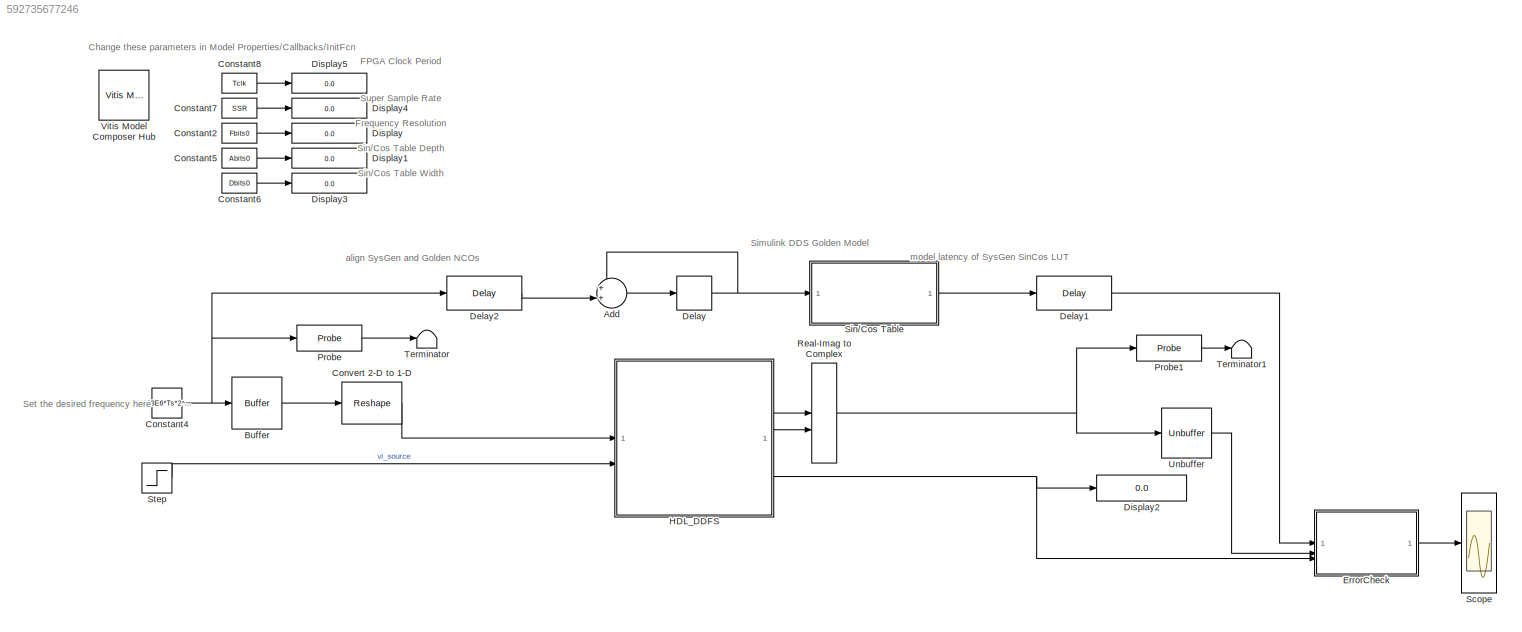
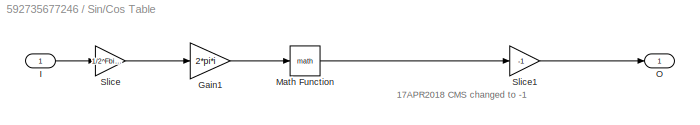
MODEL slx_592735677246
KIND model
CONFIG AbsTol = auto
CONFIG EnableMultiTasking = off
CONFIG FixedStep = auto
CONFIG InitFcn = Fbits0=48; %frequency resolution\nAbits0=16; %Sin/COS table depth is 2^Abits\nDbits0=18; %Sin/COS table width is 1..-Dbits\n\nclk = 550e+6; % Hz\n%clk = 275e+6; % Hz\n\n% change sample rate to change SSR\nsample_rate = 1/6600e+6; % 6.6GHz\nsample_rate = 1/4400e+6; % \n%sample_rate = 1/3300e+6; % 3.3GHz\n\n\nSSR = ceil((1/sample_rate)*(1/clk));\nTclk = 1/clk;\nTs = sample_rate;\n\n%SSR=128;\n%Ts=2.5E-10; %4Gsps samp...<+40ch>
CONFIG MaxStep = auto
CONFIG MinStep = auto
CONFIG RelTol = 1e-3
CONFIG SampleTimeConstraint = Unconstrained
CONFIG SolverName = VariableStepAuto
CONFIG StartTime = 0.0
CONFIG StopTime = 80E-6
BLOCK [Sum] Add
  Inputs = ++|
  OutDataTypeStr = fixdt(1,Fbits0,0)
BLOCK [Buffer] Buffer
  N = SSR
  OutputFrames = off
BLOCK [Constant] Constant2
  OutDataTypeStr = int32
  SampleTime = -1
  Value = Fbits0
BLOCK [Constant] Constant4
  OutDataTypeStr = fixdt(1,Fbits0,0)
  SampleTime = -1
  Value = 123E6*Ts*2^Fbits0
BLOCK [Constant] Constant5
  OutDataTypeStr = int32
  SampleTime = -1
  Value = Abits0
BLOCK [Constant] Constant6
  OutDataTypeStr = int32
  SampleTime = -1
  Value = Dbits0
BLOCK [Constant] Constant7
  OutDataTypeStr = int32
  SampleTime = -1
  Value = SSR
BLOCK [Constant] Constant8
  OutDataTypeStr = double
  SampleTime = -1
  Value = Tclk
BLOCK [Reshape] Convert 2-D to 1-D
BLOCK [Delay] Delay
  DelayLength = 1
  InputPortMap = u0
BLOCK [Delay] Delay1
  DelayLength = 5*SSR
  InputPortMap = u0
BLOCK [Delay] Delay2
  DelayLength = 2*SSR*SSR
  InputPortMap = u0
BLOCK [Display] Display
  Decimation = 1
BLOCK [Display] Display1
  Decimation = 1
BLOCK [Display] Display2
  Decimation = 1
BLOCK [Display] Display3
  Decimation = 1
BLOCK [Display] Display4
  Decimation = 1
BLOCK [Display] Display5
  Decimation = 1
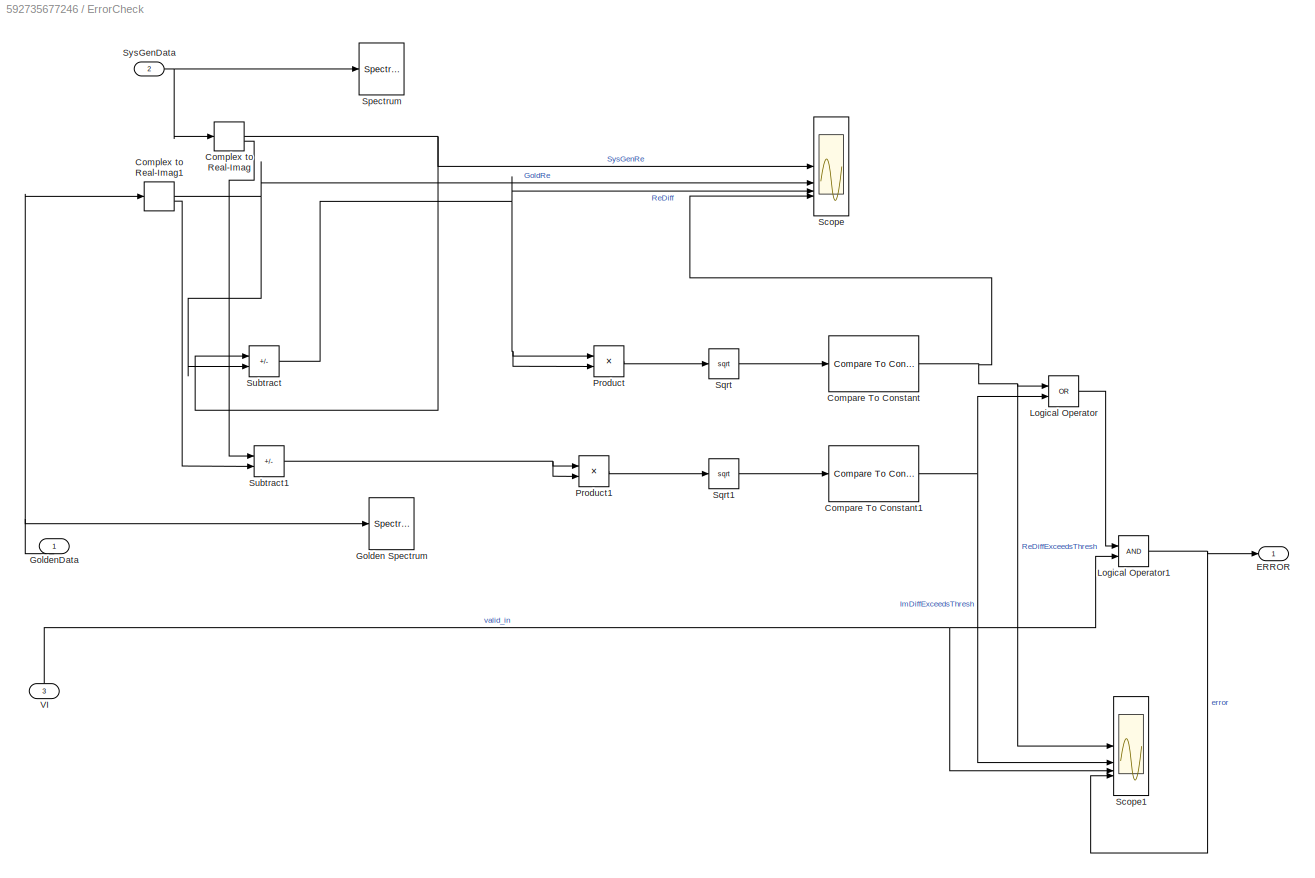
BLOCK [SubSystem] ErrorCheck
BLOCK [Reference] ErrorCheck/Compare To Constant  REF=simulink/Logic and Bit
Operations/Compare
To Constant
  SourceBlock = simulink/Logic and Bit\nOperations/Compare\nTo Constant
  SourceType = Compare To Constant
BLOCK [Reference] ErrorCheck/Compare To Constant1  REF=simulink/Logic and Bit
Operations/Compare
To Constant
  SourceBlock = simulink/Logic and Bit\nOperations/Compare\nTo Constant
  SourceType = Compare To Constant
BLOCK [ComplexToRealImag] ErrorCheck/Complex to Real-Imag
BLOCK [ComplexToRealImag] ErrorCheck/Complex to Real-Imag1
BLOCK [Outport] ErrorCheck/ERROR
BLOCK [SpectrumAnalyzer] ErrorCheck/Golden Spectrum
  AllowFFTLengthLessThanSamplesPerUpdate = on
  AveragingMethod = Exponential
  AxesScaling = Manual
  ChannelNames = [""]
  DefaultConfigurationName = spbscopes.SpectrumAnalyzerBlockCfg
  Method = Welch
  ScopeSpecificationString = spbscopes.SpectrumAnalyzerBlockCfg('CurrentConfiguration', extmgr.ConfigurationSet(extmgr.Configuration('Core','General UI',true,'FigureColor',[0.16        0.16        0.16]),extmgr.Configuration('Visuals','Spectrum',true,'Title','','YLabel','','MinYLim','-200','MaxYLim','0','Legend',false,'AxesProperties',struct('XGrid',{'on','on'},'YGrid',{'on','on'},'ZGrid',{'on','on'},'Color',{[0 0 0],[0 0 0]}...<+2368ch>
  WasSavedAsWebScope = on
  WindowLength = 10000
BLOCK [Inport] ErrorCheck/GoldenData
  NameLocation = right
BLOCK [Logic] ErrorCheck/Logical Operator
  AllPortsSameDT = off
  Operator = OR
  OutDataTypeStr = boolean
BLOCK [Logic] ErrorCheck/Logical Operator1
  AllPortsSameDT = off
  OutDataTypeStr = boolean
BLOCK [Product] ErrorCheck/Product
BLOCK [Product] ErrorCheck/Product1
BLOCK [Scope] ErrorCheck/Scope
  Floating = off
  NumInputPorts = 4
  ScopeSpecificationString = Simulink.scopes.TimeScopeBlockCfg('CurrentConfiguration', extmgr.ConfigurationSet(extmgr.Configuration('Core','General UI',true,'DisplayFullSourceName',false,'ShowMainToolbar',true),extmgr.Configuration('Sources','WiredSimulink',true,'DataLogging',false,'DataLoggingVariableName','ScopeData','DataLoggingLimitDataPoints',false,'DataLoggingMaxPoints','5000','DataLoggingDecimateData',false,'DataLoggin...<+4332ch>
BLOCK [Scope] ErrorCheck/Scope1
  Floating = off
  NumInputPorts = 4
  ScopeSpecificationString = Simulink.scopes.TimeScopeBlockCfg('CurrentConfiguration', extmgr.ConfigurationSet(extmgr.Configuration('Core','General UI',true,'DisplayFullSourceName',false,'ShowMainToolbar',true),extmgr.Configuration('Sources','WiredSimulink',true,'DataLogging',false,'DataLoggingVariableName','ScopeData1','DataLoggingLimitDataPoints',false,'DataLoggingMaxPoints','5000','DataLoggingDecimateData',false,'DataLoggi...<+4323ch>
BLOCK [SpectrumAnalyzer] ErrorCheck/Spectrum
  AllowFFTLengthLessThanSamplesPerUpdate = on
  AveragingMethod = Exponential
  AxesScaling = Manual
  ChannelNames = [""]
  DefaultConfigurationName = spbscopes.SpectrumAnalyzerBlockCfg
  Method = Welch
  ScopeSpecificationString = spbscopes.SpectrumAnalyzerBlockCfg('CurrentConfiguration', extmgr.ConfigurationSet(extmgr.Configuration('Core','General UI',true,'FigureColor',[0.16        0.16        0.16]),extmgr.Configuration('Visuals','Spectrum',true,'Title','','YLabel','','MinYLim','-200','MaxYLim','0','Legend',false,'AxesProperties',struct('XGrid',{'on','on'},'YGrid',{'on','on'},'ZGrid',{'on','on'},'Color',{[0 0 0],[0 0 0]}...<+2367ch>
  WasSavedAsWebScope = on
  WindowLength = 10000
BLOCK [Sqrt] ErrorCheck/Sqrt
BLOCK [Sqrt] ErrorCheck/Sqrt1
BLOCK [Sum] ErrorCheck/Subtract
  IconShape = rectangular
  Inputs = +-
BLOCK [Sum] ErrorCheck/Subtract1
  IconShape = rectangular
  Inputs = +-
BLOCK [Inport] ErrorCheck/SysGenData
  Port = 2
BLOCK [Inport] ErrorCheck/VI
  NameLocation = right
  Port = 3
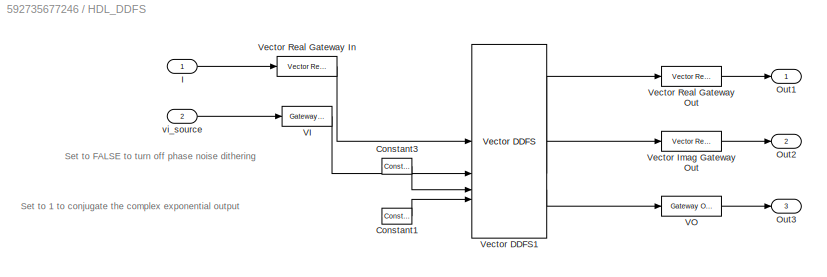
BLOCK [SubSystem] HDL_DDFS
BLOCK [Reference] HDL_DDFS/Constant1  REF=hdlBasic/Constant
  SourceBlock = hdlBasic/Constant
  SourceType = Constant Block Block
BLOCK [Reference] HDL_DDFS/Constant3  REF=hdlBasic/Constant
  SourceBlock = hdlBasic/Constant
  SourceType = Constant Block Block
BLOCK [Inport] HDL_DDFS/I
BLOCK [Outport] HDL_DDFS/Out1
BLOCK [Outport] HDL_DDFS/Out2
  Port = 2
BLOCK [Outport] HDL_DDFS/Out3
  Port = 3
BLOCK [Reference] HDL_DDFS/VI  REF=hdlBasic/Gateway In
  SourceBlock = hdlBasic/Gateway In
  SourceType = Gateway In Block
BLOCK [Reference] HDL_DDFS/VO  REF=hdlBasic/Gateway Out
  SourceBlock = hdlBasic/Gateway Out
  SourceType = Gateway Out Block
BLOCK [Reference] HDL_DDFS/Vector DDFS1  REF=hdlSSR/Vector DDFS
  SourceBlock = hdlSSR/Vector DDFS
  SourceType = Xilinx Vector DDFS Block
BLOCK [Reference] HDL_DDFS/Vector Imag Gateway Out  REF=hdlSSR/Vector Real Gateway Out
  SourceBlock = hdlSSR/Vector Real Gateway Out
  SourceType = Xilinx Vector Gateway Out Block
BLOCK [Reference] HDL_DDFS/Vector Real Gateway In  REF=hdlSSR/Vector Real Gateway In
  SourceBlock = hdlSSR/Vector Real Gateway In
  SourceType = Xilinx Vector Gateway In Block
BLOCK [Reference] HDL_DDFS/Vector Real Gateway Out  REF=hdlSSR/Vector Real Gateway Out
  SourceBlock = hdlSSR/Vector Real Gateway Out
  SourceType = Xilinx Vector Gateway Out Block
BLOCK [Inport] HDL_DDFS/vi_source
  Port = 2
BLOCK [Probe] Probe
  ProbeComplexSignal = off
  ProbeWidth = off
BLOCK [Probe] Probe1
  ProbeComplexSignal = off
  ProbeWidth = off
BLOCK [RealImagToComplex] Real-Imag to Complex
BLOCK [Scope] Scope
  Floating = off
  NumInputPorts = 1
  ScopeSpecificationString = Simulink.scopes.TimeScopeBlockCfg('CurrentConfiguration', extmgr.ConfigurationSet(extmgr.Configuration('Core','General UI',true,'DisplayFullSourceName',false,'ShowMainToolbar',true),extmgr.Configuration('Sources','WiredSimulink',true,'DataLogging',false,'DataLoggingVariableName','ScopeData2','DataLoggingLimitDataPoints',false,'DataLoggingMaxPoints','5000','DataLoggingDecimateData',false,'DataLoggi...<+4314ch>
BLOCK [SubSystem] Sin//Cos Table
BLOCK [Gain] Sin//Cos Table/Gain1
  Gain = 2*pi*i
  OutDataTypeStr = double
BLOCK [Inport] Sin//Cos Table/I
BLOCK [Math] Sin//Cos Table/Math Function
  SignedPower = on
BLOCK [Outport] Sin//Cos Table/O
BLOCK [Gain] Sin//Cos Table/Slice
  Gain = 1/2^Fbits0
  OutDataTypeStr = fixdt(1,Abits0,Abits0)
BLOCK [Gain] Sin//Cos Table/Slice1
  Gain = -1
  OutDataTypeStr = fixdt(1,Dbits0+2,Dbits0)
BLOCK [Step] Step
  Time = Ts
BLOCK [Terminator] Terminator
BLOCK [Terminator] Terminator1
BLOCK [Unbuffer] Unbuffer
BLOCK [Reference] Vitis Model Composer Hub  REF=vmcUtilities/Vitis Model Composer Hub
  SourceBlock = vmcUtilities/Vitis Model Composer Hub
  SourceType = VMC Hub
  Tag = genX
  UserDataPersistent = on
ANNOTATION (root): Change these parameters in Model Properties/Callbacks/InitFcn
ANNOTATION (root): FPGA Clock Period
ANNOTATION (root): Frequency Resolution
ANNOTATION (root): Set the desired frequency here
ANNOTATION (root): Simulink DDS Golden Model
ANNOTATION (root): Sin/Cos Table Depth
ANNOTATION (root): Sin/Cos Table Width
ANNOTATION (root): Super Sample Rate
ANNOTATION (root): align SysGen and Golden NCOs
ANNOTATION (root): model latency of SysGen SinCos LUT
ANNOTATION HDL_DDFS: Set to 1 to conjugate the complex exponential output
ANNOTATION HDL_DDFS: Set to FALSE to turn off phase noise dithering
ANNOTATION Sin//Cos Table: 17APR2018 CMS changed to -1
LINE Add:1 -> Delay:1
LINE Buffer:1 -> Convert 2-D to 1-D:1
LINE Constant2:1 -> Display:1
NET Constant4:1 -> Buffer:1, Delay2:1, Probe:1
LINE Constant5:1 -> Display1:1
LINE Constant6:1 -> Display3:1
LINE Constant7:1 -> Display4:1
LINE Constant8:1 -> Display5:1
LINE Convert 2-D to 1-D:1 -> HDL_DDFS:1
LINE Delay1:1 -> ErrorCheck:1
LINE Delay2:1 -> Add:2
NET Delay:1 -> Add:1, Sin//Cos Table:1
NET ErrorCheck/Compare To Constant1:1 -> ErrorCheck/Logical Operator:2, ErrorCheck/Scope1:2
NET ErrorCheck/Compare To Constant:1 -> ErrorCheck/Logical Operator:1, ErrorCheck/Scope1:1, ErrorCheck/Scope:4
NET ErrorCheck/Complex to Real-Imag1:1 -> ErrorCheck/Scope:2, ErrorCheck/Subtract:2
LINE ErrorCheck/Complex to Real-Imag1:2 -> ErrorCheck/Subtract1:2
NET ErrorCheck/Complex to Real-Imag:1 -> ErrorCheck/Scope:1, ErrorCheck/Subtract:1
LINE ErrorCheck/Complex to Real-Imag:2 -> ErrorCheck/Subtract1:1
NET ErrorCheck/GoldenData:1 -> ErrorCheck/Complex to Real-Imag1:1, ErrorCheck/Golden Spectrum:1
NET ErrorCheck/Logical Operator1:1 -> ErrorCheck/ERROR:1, ErrorCheck/Scope1:4
LINE ErrorCheck/Logical Operator:1 -> ErrorCheck/Logical Operator1:1
LINE ErrorCheck/Product1:1 -> ErrorCheck/Sqrt1:1
LINE ErrorCheck/Product:1 -> ErrorCheck/Sqrt:1
LINE ErrorCheck/Sqrt1:1 -> ErrorCheck/Compare To Constant1:1
LINE ErrorCheck/Sqrt:1 -> ErrorCheck/Compare To Constant:1
NET ErrorCheck/Subtract1:1 -> ErrorCheck/Product1:1, ErrorCheck/Product1:2
NET ErrorCheck/Subtract:1 -> ErrorCheck/Product:1, ErrorCheck/Product:2, ErrorCheck/Scope:3
NET ErrorCheck/SysGenData:1 -> ErrorCheck/Complex to Real-Imag:1, ErrorCheck/Spectrum:1
NET ErrorCheck/VI:1 -> ErrorCheck/Logical Operator1:2, ErrorCheck/Scope1:3
LINE ErrorCheck:1 -> Scope:1
LINE HDL_DDFS/Constant1:1 -> HDL_DDFS/Vector DDFS1:4
LINE HDL_DDFS/Constant3:1 -> HDL_DDFS/Vector DDFS1:3
LINE HDL_DDFS/I:1 -> HDL_DDFS/Vector Real Gateway In:1
LINE HDL_DDFS/VI:1 -> HDL_DDFS/Vector DDFS1:2
LINE HDL_DDFS/VO:1 -> HDL_DDFS/Out3:1
LINE HDL_DDFS/Vector DDFS1:1 -> HDL_DDFS/Vector Real Gateway Out:1
LINE HDL_DDFS/Vector DDFS1:2 -> HDL_DDFS/Vector Imag Gateway Out:1
LINE HDL_DDFS/Vector DDFS1:3 -> HDL_DDFS/VO:1
LINE HDL_DDFS/Vector Imag Gateway Out:1 -> HDL_DDFS/Out2:1
LINE HDL_DDFS/Vector Real Gateway In:1 -> HDL_DDFS/Vector DDFS1:1
LINE HDL_DDFS/Vector Real Gateway Out:1 -> HDL_DDFS/Out1:1
LINE HDL_DDFS/vi_source:1 -> HDL_DDFS/VI:1
LINE HDL_DDFS:1 -> Real-Imag to Complex:1
LINE HDL_DDFS:2 -> Real-Imag to Complex:2
NET HDL_DDFS:3 -> Display2:1, ErrorCheck:3
LINE Probe1:1 -> Terminator1:1
LINE Probe:1 -> Terminator:1
NET Real-Imag to Complex:1 -> Probe1:1, Unbuffer:1
LINE Sin//Cos Table/Gain1:1 -> Sin//Cos Table/Math Function:1
LINE Sin//Cos Table/I:1 -> Sin//Cos Table/Slice:1
LINE Sin//Cos Table/Math Function:1 -> Sin//Cos Table/Slice1:1
LINE Sin//Cos Table/Slice1:1 -> Sin//Cos Table/O:1
LINE Sin//Cos Table/Slice:1 -> Sin//Cos Table/Gain1:1
LINE Sin//Cos Table:1 -> Delay1:1
LINE Step:1 -> HDL_DDFS:2
LINE Unbuffer:1 -> ErrorCheck:2
note: NET lines group one-source signal fan-out (src -> all destinations, sorted); 1:1 wires keep LINE
